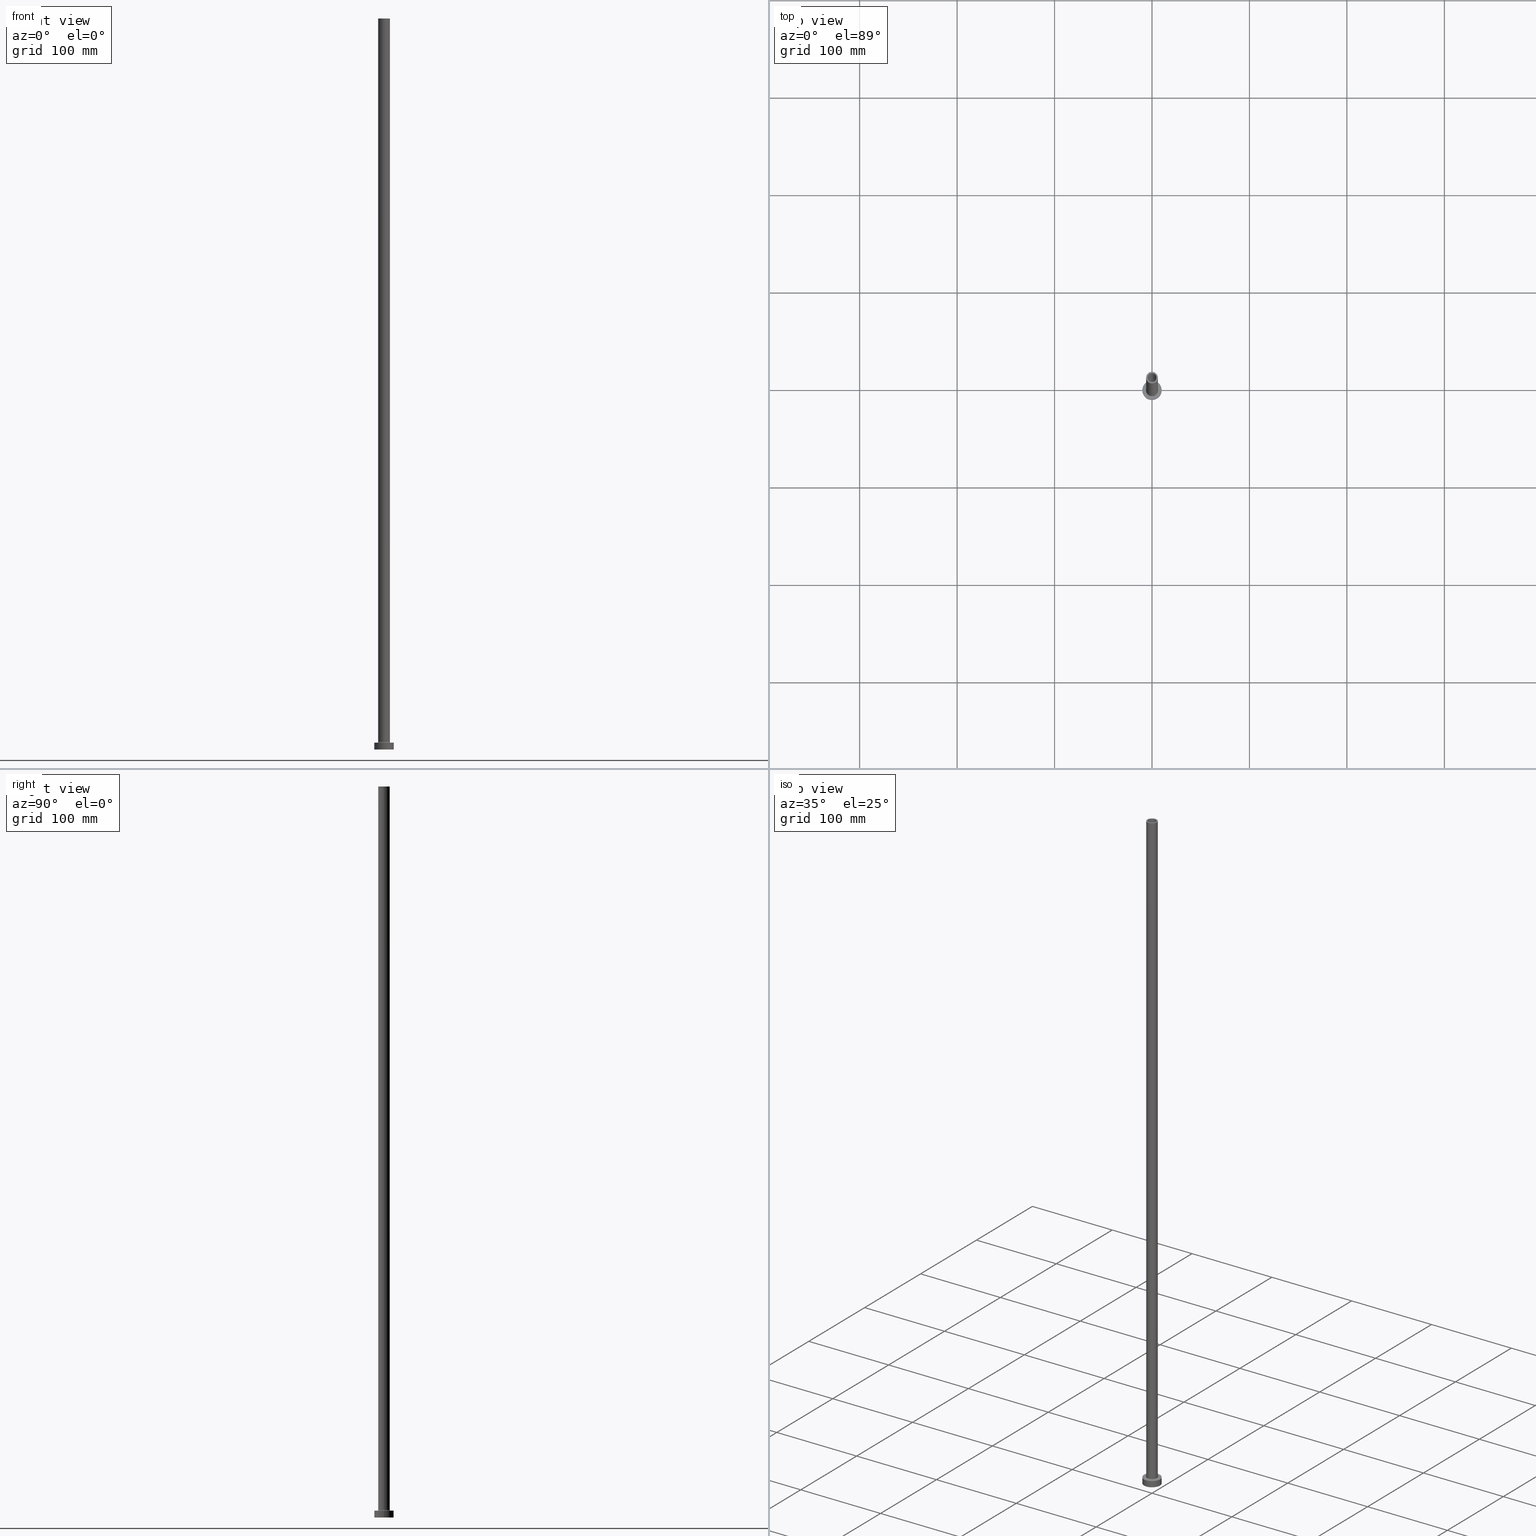
[diagram: canonical four-view strip — front | top / right | iso, engineering-drawing reading convention]
A machine part, canonical four-view strip (front | top / right | iso — engineering-drawing reading convention). The complete STEP part file that produces these views, byte-faithful:
ISO-10303-21;
HEADER;
FILE_DESCRIPTION (( 'STEP AP203' ),
    '1' );
FILE_NAME ('38ea.STEP',
    '2023-02-13T10:59:31',
    ( '' ),
    ( '' ),
    'SwSTEP 2.0',
    'SolidWorks 2019',
    '' );
FILE_SCHEMA (( 'CONFIG_CONTROL_DESIGN' ));
ENDSEC;

DATA;
#1 = CARTESIAN_POINT ( 'NONE',  ( 4.650000000000000355, 5.694607616035192869E-16, 705.0000000000000000 ) ) ;
#2 = EDGE_LOOP ( 'NONE', ( #151, #365, #74, #221 ) ) ;
#3 = AXIS2_PLACEMENT_3D ( 'NONE', #374, #243, #173 ) ;
#4 = CARTESIAN_POINT ( 'NONE',  ( 6.700000000000001066, 0.000000000000000000, 7.000000000000020428 ) ) ;
#5 = APPROVAL_STATUS ( 'not_yet_approved' ) ;
#6 = AXIS2_PLACEMENT_3D ( 'NONE', #31, #391, #256 ) ;
#7 = EDGE_CURVE ( 'NONE', #382, #440, #67, .T. ) ;
#8 = EDGE_CURVE ( 'NONE', #360, #382, #17, .T. ) ;
#9 = EDGE_CURVE ( 'NONE', #225, #143, #190, .T. ) ;
#10 = ORIENTED_EDGE ( 'NONE', *, *, #417, .F. ) ;
#11 = MECHANICAL_CONTEXT ( 'NONE', #40, 'mechanical' ) ;
#12 = CARTESIAN_POINT ( 'NONE',  ( -6.000000000000000888, 0.000000000000000000, 750.0000000000000000 ) ) ;
#13 = EDGE_CURVE ( 'NONE', #115, #362, #405, .T. ) ;
#14 = APPROVAL_ROLE ( '' ) ;
#15 = DIRECTION ( 'NONE',  ( 0.000000000000000000, 0.000000000000000000, 1.000000000000000000 ) ) ;
#16 = ORIENTED_EDGE ( 'NONE', *, *, #142, .T. ) ;
#17 = CIRCLE ( 'NONE', #133, 0.7000000000000000666 ) ;
#18 = EDGE_LOOP ( 'NONE', ( #396, #318, #394, #16 ) ) ;
#19 = DIRECTION ( 'NONE',  ( -0.000000000000000000, -0.000000000000000000, -1.000000000000000000 ) ) ;
#20 = CIRCLE ( 'NONE', #152, 4.650000000000000355 ) ;
#21 = COORDINATED_UNIVERSAL_TIME_OFFSET ( 1, 0, .AHEAD. ) ;
#22 = CC_DESIGN_PERSON_AND_ORGANIZATION_ASSIGNMENT ( #207, #343, ( #230 ) ) ;
#23 = EDGE_CURVE ( 'NONE', #158, #193, #371, .T. ) ;
#24 = PERSON_AND_ORGANIZATION ( #37, #222 ) ;
#25 = DIRECTION ( 'NONE',  ( 1.000000000000000000, 0.000000000000000000, 0.000000000000000000 ) ) ;
#26 = DIRECTION ( 'NONE',  ( 0.000000000000000000, 0.000000000000000000, 1.000000000000000000 ) ) ;
#27 = EDGE_CURVE ( 'NONE', #197, #321, #76, .T. ) ;
#28 = AXIS2_PLACEMENT_3D ( 'NONE', #309, #92, #312 ) ;
#29 = CIRCLE ( 'NONE', #331, 6.700000000000001066 ) ;
#30 = DIRECTION ( 'NONE',  ( 1.000000000000000000, 0.000000000000000000, 0.000000000000000000 ) ) ;
#31 = CARTESIAN_POINT ( 'NONE',  ( 0.000000000000000000, 0.000000000000000000, 750.0000000000000000 ) ) ;
#32 = ORIENTED_EDGE ( 'NONE', *, *, #442, .T. ) ;
#33 = CLOSED_SHELL ( 'NONE', ( #325, #422, #177, #398, #450, #181, #215, #229, #171, #313, #43, #289, #90, #264 ) ) ;
#34 = CARTESIAN_POINT ( 'NONE',  ( -4.650000000000000355, 0.000000000000000000, 0.000000000000000000 ) ) ;
#35 = ORIENTED_EDGE ( 'NONE', *, *, #98, .F. ) ;
#36 = DIRECTION ( 'NONE',  ( 0.000000000000000000, 0.000000000000000000, -1.000000000000000000 ) ) ;
#37 = PERSON ( 'NEUR�EN�', 'NEUR�EN�', 'NEUR�EN�', ('NEUR�EN�'), ('NEUR�EN�'), ('NEUR�EN�') ) ;
#38 = CARTESIAN_POINT ( 'NONE',  ( 6.000000000000000888, 7.347880794884119736E-16, 750.0000000000000000 ) ) ;
#39 = VERTEX_POINT ( 'NONE', #121 ) ;
#40 = APPLICATION_CONTEXT ( 'configuration controlled 3d designs of mechanical parts and assemblies' ) ;
#41 = CARTESIAN_POINT ( 'NONE',  ( -6.700000000000001066, 8.205133554287267548E-16, 7.000000000000020428 ) ) ;
#42 = ORIENTED_EDGE ( 'NONE', *, *, #366, .F. ) ;
#43 = ADVANCED_FACE ( 'NONE', ( #296 ), #163, .F. ) ;
#44 = APPLICATION_CONTEXT ( 'configuration controlled 3d designs of mechanical parts and assemblies' ) ;
#45 = PERSON_AND_ORGANIZATION ( #37, #222 ) ;
#46 = AXIS2_PLACEMENT_3D ( 'NONE', #61, #59, #166 ) ;
#47 = ORIENTED_EDGE ( 'NONE', *, *, #404, .F. ) ;
#48 = AXIS2_PLACEMENT_3D ( 'NONE', #178, #457, #141 ) ;
#49 = DIRECTION ( 'NONE',  ( -0.000000000000000000, -0.000000000000000000, -1.000000000000000000 ) ) ;
#50 = EDGE_CURVE ( 'NONE', #360, #143, #210, .T. ) ;
#51 = ORIENTED_EDGE ( 'NONE', *, *, #254, .T. ) ;
#52 = APPLICATION_PROTOCOL_DEFINITION ( 'international standard', 'config_control_design', 1994, #40 ) ;
#53 = DIRECTION ( 'NONE',  ( 0.000000000000000000, 0.000000000000000000, 1.000000000000000000 ) ) ;
#54 = DIRECTION ( 'NONE',  ( -1.000000000000000000, 0.000000000000000000, 0.000000000000000000 ) ) ;
#55 = EDGE_LOOP ( 'NONE', ( #217, #429 ) ) ;
#56 = DIRECTION ( 'NONE',  ( 1.000000000000000000, 0.000000000000000000, 0.000000000000000000 ) ) ;
#57 = DATE_AND_TIME ( #242, #438 ) ;
#58 = PLANE ( 'NONE',  #236 ) ;
#59 = DIRECTION ( 'NONE',  ( 0.000000000000000000, 0.000000000000000000, 1.000000000000000000 ) ) ;
#60 = LINE ( 'NONE', #413, #63 ) ;
#61 = CARTESIAN_POINT ( 'NONE',  ( 0.000000000000000000, 0.000000000000000000, 750.0000000000000000 ) ) ;
#62 = EDGE_CURVE ( 'NONE', #158, #259, #200, .T. ) ;
#63 = VECTOR ( 'NONE', #212, 1000.000000000000000 ) ;
#64 = CYLINDRICAL_SURFACE ( 'NONE', #406, 6.000000000000000888 ) ;
#65 = DIRECTION ( 'NONE',  ( 0.000000000000000000, 0.000000000000000000, 1.000000000000000000 ) ) ;
#66 = DIRECTION ( 'NONE',  ( -1.000000000000000000, 0.000000000000000000, 0.000000000000000000 ) ) ;
#67 = CIRCLE ( 'NONE', #298, 6.700000000000001066 ) ;
#68 = AXIS2_PLACEMENT_3D ( 'NONE', #306, #350, #276 ) ;
#69 = CARTESIAN_POINT ( 'NONE',  ( 0.000000000000000000, 0.000000000000000000, 7.000000000000000000 ) ) ;
#70 = ORIENTED_EDGE ( 'NONE', *, *, #308, .T. ) ;
#71 = APPROVAL_PERSON_ORGANIZATION ( #233, #433, #14 ) ;
#72 = CARTESIAN_POINT ( 'NONE',  ( 0.000000000000000000, 0.000000000000000000, 705.0000000000000000 ) ) ;
#73 = DIRECTION ( 'NONE',  ( 0.000000000000000000, 0.000000000000000000, -1.000000000000000000 ) ) ;
#74 = ORIENTED_EDGE ( 'NONE', *, *, #50, .T. ) ;
#75 = APPROVAL_DATE_TIME ( #116, #433 ) ;
#76 = LINE ( 'NONE', #340, #393 ) ;
#77 = DIRECTION ( 'NONE',  ( 0.000000000000000000, 0.000000000000000000, 1.000000000000000000 ) ) ;
#78 = EDGE_LOOP ( 'NONE', ( #392, #335 ) ) ;
#79 = CC_DESIGN_APPROVAL ( #441, ( #230 ) ) ;
#80 = CARTESIAN_POINT ( 'NONE',  ( 0.000000000000000000, 0.000000000000000000, 718.1521861300698220 ) ) ;
#81 = DIRECTION ( 'NONE',  ( 1.000000000000000000, 0.000000000000000000, 0.000000000000000000 ) ) ;
#82 = DIRECTION ( 'NONE',  ( 1.000000000000000000, 0.000000000000000000, 0.000000000000000000 ) ) ;
#83 = ORIENTED_EDGE ( 'NONE', *, *, #9, .T. ) ;
#84 = CARTESIAN_POINT ( 'NONE',  ( 0.000000000000000000, 0.000000000000000000, 7.000000000000000000 ) ) ;
#85 = DIRECTION ( 'NONE',  ( 0.000000000000000000, 0.000000000000000000, -1.000000000000000000 ) ) ;
#86 = AXIS2_PLACEMENT_3D ( 'NONE', #285, #110, #416 ) ;
#87 = CALENDAR_DATE ( 2023, 13, 2 ) ;
#88 = CARTESIAN_POINT ( 'NONE',  ( 10.00000000000000000, 1.224646799147353256E-15, 7.000000000000000000 ) ) ;
#89 = FACE_OUTER_BOUND ( 'NONE', #418, .T. ) ;
#90 = ADVANCED_FACE ( 'NONE', ( #208, #136 ), #131, .F. ) ;
#91 = PERSON_AND_ORGANIZATION ( #37, #222 ) ;
#92 = DIRECTION ( 'NONE',  ( 0.000000000000000000, 0.000000000000000000, 1.000000000000000000 ) ) ;
#93 = CIRCLE ( 'NONE', #46, 6.000000000000000888 ) ;
#94 = CC_DESIGN_APPROVAL ( #433, ( #128 ) ) ;
#95 = CC_DESIGN_PERSON_AND_ORGANIZATION_ASSIGNMENT ( #24, #377, ( #345 ) ) ;
#96 = CARTESIAN_POINT ( 'NONE',  ( -4.500000000000000000, 0.000000000000000000, 705.0000000000000000 ) ) ;
#97 = DIRECTION ( 'NONE',  ( -0.000000000000000000, -0.000000000000000000, -1.000000000000000000 ) ) ;
#98 = EDGE_CURVE ( 'NONE', #262, #369, #60, .T. ) ;
#99 = UNCERTAINTY_MEASURE_WITH_UNIT (LENGTH_MEASURE( 1.000000000000000082E-05 ), #295, 'distance_accuracy_value', 'NONE');
#100 = CARTESIAN_POINT ( 'NONE',  ( 4.650000000000000355, 5.694607616035192869E-16, 0.000000000000000000 ) ) ;
#101 = EDGE_LOOP ( 'NONE', ( #257, #339 ) ) ;
#102 = AXIS2_PLACEMENT_3D ( 'NONE', #183, #323, #224 ) ;
#103 = CARTESIAN_POINT ( 'NONE',  ( 0.000000000000000000, 0.000000000000000000, 750.0000000000000000 ) ) ;
#104 = ORIENTED_EDGE ( 'NONE', *, *, #320, .T. ) ;
#105 = CC_DESIGN_DATE_AND_TIME_ASSIGNMENT ( #297, #432, ( #128 ) ) ;
#106 = EDGE_CURVE ( 'NONE', #327, #360, #277, .T. ) ;
#107 = LINE ( 'NONE', #456, #244 ) ;
#108 = ORIENTED_EDGE ( 'NONE', *, *, #455, .F. ) ;
#109 = VECTOR ( 'NONE', #443, 1000.000000000000000 ) ;
#110 = DIRECTION ( 'NONE',  ( 1.224646799147353207E-16, 1.000000000000000000, -0.000000000000000000 ) ) ;
#111 = ORIENTED_EDGE ( 'NONE', *, *, #23, .T. ) ;
#112 = AXIS2_PLACEMENT_3D ( 'NONE', #269, #159, #338 ) ;
#113 = CYLINDRICAL_SURFACE ( 'NONE', #213, 4.650000000000000355 ) ;
#114 = ADVANCED_BREP_SHAPE_REPRESENTATION ( '38ea', ( #202, #175 ), #252 ) ;
#115 = VERTEX_POINT ( 'NONE', #248 ) ;
#116 = DATE_AND_TIME ( #431, #237 ) ;
#117 = CARTESIAN_POINT ( 'NONE',  ( 0.000000000000000000, 0.000000000000000000, 7.700000000000040146 ) ) ;
#118 = PERSON_AND_ORGANIZATION_ROLE ( 'creator' ) ;
#119 = EDGE_LOOP ( 'NONE', ( #186, #461 ) ) ;
#120 = PERSON_AND_ORGANIZATION_ROLE ( 'design_owner' ) ;
#121 = CARTESIAN_POINT ( 'NONE',  ( 4.500000000000000000, 5.510910596163088569E-16, 705.0000000000000000 ) ) ;
#122 = AXIS2_PLACEMENT_3D ( 'NONE', #69, #65, #389 ) ;
#123 = CC_DESIGN_PERSON_AND_ORGANIZATION_ASSIGNMENT ( #329, #120, ( #191 ) ) ;
#124 = CYLINDRICAL_SURFACE ( 'NONE', #294, 4.650000000000000355 ) ;
#125 = DIRECTION ( 'NONE',  ( -0.000000000000000000, -0.000000000000000000, -1.000000000000000000 ) ) ;
#126 = DIRECTION ( 'NONE',  ( 1.000000000000000000, 0.000000000000000000, 0.000000000000000000 ) ) ;
#127 = ORIENTED_EDGE ( 'NONE', *, *, #23, .F. ) ;
#128 = PRODUCT_DEFINITION ( 'NEZN�M�', '', #345, #415 ) ;
#129 = CARTESIAN_POINT ( 'NONE',  ( 0.000000000000000000, 0.000000000000000000, 750.0000000000000000 ) ) ;
#130 = CIRCLE ( 'NONE', #122, 10.00000000000000000 ) ;
#131 = PLANE ( 'NONE',  #68 ) ;
#132 = DATE_TIME_ROLE ( 'classification_date' ) ;
#133 = AXIS2_PLACEMENT_3D ( 'NONE', #305, #266, #234 ) ;
#134 = CARTESIAN_POINT ( 'NONE',  ( -4.500000000000000000, 0.000000000000000000, 750.0000000000000000 ) ) ;
#135 = CC_DESIGN_PERSON_AND_ORGANIZATION_ASSIGNMENT ( #45, #118, ( #128 ) ) ;
#136 = FACE_OUTER_BOUND ( 'NONE', #184, .T. ) ;
#137 = CIRCLE ( 'NONE', #430, 10.00000000000000000 ) ;
#138 = FACE_OUTER_BOUND ( 'NONE', #352, .T. ) ;
#139 = VECTOR ( 'NONE', #270, 1000.000000000000000 ) ;
#140 = DIRECTION ( 'NONE',  ( -1.000000000000000000, 0.000000000000000000, 0.000000000000000000 ) ) ;
#141 = DIRECTION ( 'NONE',  ( 1.000000000000000000, 0.000000000000000000, 0.000000000000000000 ) ) ;
#142 = EDGE_CURVE ( 'NONE', #321, #238, #386, .T. ) ;
#143 = VERTEX_POINT ( 'NONE', #410 ) ;
#144 = CIRCLE ( 'NONE', #307, 4.650000000000000355 ) ;
#145 = CC_DESIGN_SECURITY_CLASSIFICATION ( #230, ( #345 ) ) ;
#146 = FACE_OUTER_BOUND ( 'NONE', #2, .T. ) ;
#147 = ORIENTED_EDGE ( 'NONE', *, *, #267, .F. ) ;
#148 = CARTESIAN_POINT ( 'NONE',  ( 0.000000000000000000, 0.000000000000000000, 7.700000000000040146 ) ) ;
#149 = ORIENTED_EDGE ( 'NONE', *, *, #349, .T. ) ;
#150 = FACE_OUTER_BOUND ( 'NONE', #426, .T. ) ;
#151 = ORIENTED_EDGE ( 'NONE', *, *, #341, .F. ) ;
#152 = AXIS2_PLACEMENT_3D ( 'NONE', #231, #77, #82 ) ;
#153 = COORDINATED_UNIVERSAL_TIME_OFFSET ( 1, 0, .AHEAD. ) ;
#154 = ORIENTED_EDGE ( 'NONE', *, *, #353, .F. ) ;
#155 = CALENDAR_DATE ( 2023, 13, 2 ) ;
#156 = ORIENTED_EDGE ( 'NONE', *, *, #8, .T. ) ;
#157 = APPLICATION_PROTOCOL_DEFINITION ( 'international standard', 'config_control_design', 1994, #44 ) ;
#158 = VERTEX_POINT ( 'NONE', #134 ) ;
#159 = DIRECTION ( 'NONE',  ( 0.000000000000000000, 0.000000000000000000, 1.000000000000000000 ) ) ;
#160 = LOCAL_TIME ( 11, 59, 31.00000000000000000, #375 ) ;
#161 = ORIENTED_EDGE ( 'NONE', *, *, #7, .F. ) ;
#162 = ORIENTED_EDGE ( 'NONE', *, *, #8, .F. ) ;
#163 = TOROIDAL_SURFACE ( 'NONE', #402, 6.700000000000001066, 0.6999999999999999556 ) ;
#164 = PERSON_AND_ORGANIZATION ( #37, #222 ) ;
#165 = FACE_OUTER_BOUND ( 'NONE', #263, .T. ) ;
#166 = DIRECTION ( 'NONE',  ( 1.000000000000000000, 0.000000000000000000, 0.000000000000000000 ) ) ;
#167 = CIRCLE ( 'NONE', #419, 4.500000000000000000 ) ;
#168 = CIRCLE ( 'NONE', #214, 4.650000000000000355 ) ;
#169 = DATE_AND_TIME ( #87, #370 ) ;
#170 = CARTESIAN_POINT ( 'NONE',  ( 6.000000000000000888, 7.347880794884119736E-16, 750.0000000000000000 ) ) ;
#171 = ADVANCED_FACE ( 'NONE', ( #89 ), #64, .T. ) ;
#172 = CARTESIAN_POINT ( 'NONE',  ( -10.00000000000000000, 0.000000000000000000, 7.000000000000000000 ) ) ;
#173 = DIRECTION ( 'NONE',  ( 1.000000000000000000, 0.000000000000000000, 0.000000000000000000 ) ) ;
#174 = TOROIDAL_SURFACE ( 'NONE', #437, 6.700000000000001066, 0.6999999999999999556 ) ;
#175 = AXIS2_PLACEMENT_3D ( 'NONE', #334, #273, #439 ) ;
#176 = CARTESIAN_POINT ( 'NONE',  ( 0.000000000000000000, 0.000000000000000000, 705.0000000000000000 ) ) ;
#177 = ADVANCED_FACE ( 'NONE', ( #165 ), #174, .F. ) ;
#178 = CARTESIAN_POINT ( 'NONE',  ( 0.000000000000000000, 0.000000000000000000, 0.000000000000000000 ) ) ;
#179 = ORIENTED_EDGE ( 'NONE', *, *, #50, .F. ) ;
#180 = CYLINDRICAL_SURFACE ( 'NONE', #397, 4.500000000000000000 ) ;
#181 = ADVANCED_FACE ( 'NONE', ( #379 ), #240, .T. ) ;
#182 = VERTEX_POINT ( 'NONE', #88 ) ;
#183 = CARTESIAN_POINT ( 'NONE',  ( 0.000000000000000000, 0.000000000000000000, 750.0000000000000000 ) ) ;
#184 = EDGE_LOOP ( 'NONE', ( #154, #10 ) ) ;
#185 = LINE ( 'NONE', #326, #322 ) ;
#186 = ORIENTED_EDGE ( 'NONE', *, *, #383, .F. ) ;
#187 = CIRCLE ( 'NONE', #446, 4.500000000000000000 ) ;
#188 = CIRCLE ( 'NONE', #48, 4.650000000000000355 ) ;
#189 =( NAMED_UNIT ( * ) SI_UNIT ( $, .STERADIAN. ) SOLID_ANGLE_UNIT ( ) );
#190 = LINE ( 'NONE', #12, #109 ) ;
#191 = PRODUCT ( '38ea', '38ea', '', ( #11 ) ) ;
#192 = EDGE_CURVE ( 'NONE', #225, #327, #93, .T. ) ;
#193 = VERTEX_POINT ( 'NONE', #96 ) ;
#194 = CYLINDRICAL_SURFACE ( 'NONE', #279, 10.00000000000000000 ) ;
#195 = EDGE_LOOP ( 'NONE', ( #42, #293, #111, #147 ) ) ;
#196 = DIRECTION ( 'NONE',  ( -1.000000000000000000, 0.000000000000000000, 0.000000000000000000 ) ) ;
#197 = VERTEX_POINT ( 'NONE', #172 ) ;
#198 = APPROVAL ( #395, 'NEUR�EN�' ) ;
#199 = EDGE_LOOP ( 'NONE', ( #232, #458 ) ) ;
#200 = CIRCLE ( 'NONE', #3, 4.500000000000000000 ) ;
#201 = DATE_AND_TIME ( #453, #160 ) ;
#202 = MANIFOLD_SOLID_BREP ( 'Odebrat vysunut�m4', #33 ) ;
#203 = CARTESIAN_POINT ( 'NONE',  ( -6.000000000000000888, 0.000000000000000000, 750.0000000000000000 ) ) ;
#204 = SHAPE_DEFINITION_REPRESENTATION ( #226, #114 ) ;
#205 = PLANE ( 'NONE',  #357 ) ;
#206 = CIRCLE ( 'NONE', #447, 6.000000000000000888 ) ;
#207 = PERSON_AND_ORGANIZATION ( #37, #222 ) ;
#208 = FACE_BOUND ( 'NONE', #55, .T. ) ;
#209 = APPROVAL_DATE_TIME ( #169, #441 ) ;
#210 = CIRCLE ( 'NONE', #283, 6.000000000000000888 ) ;
#211 = FACE_BOUND ( 'NONE', #119, .T. ) ;
#212 = DIRECTION ( 'NONE',  ( 0.000000000000000000, 0.000000000000000000, -1.000000000000000000 ) ) ;
#213 = AXIS2_PLACEMENT_3D ( 'NONE', #380, #36, #317 ) ;
#214 = AXIS2_PLACEMENT_3D ( 'NONE', #72, #427, #319 ) ;
#215 = ADVANCED_FACE ( 'NONE', ( #448, #138 ), #58, .T. ) ;
#216 = DIRECTION ( 'NONE',  ( -0.000000000000000000, -0.000000000000000000, -1.000000000000000000 ) ) ;
#217 = ORIENTED_EDGE ( 'NONE', *, *, #455, .T. ) ;
#218 = DIRECTION ( 'NONE',  ( 1.000000000000000000, 0.000000000000000000, 0.000000000000000000 ) ) ;
#219 = ORIENTED_EDGE ( 'NONE', *, *, #62, .T. ) ;
#220 = DIRECTION ( 'NONE',  ( 1.000000000000000000, 0.000000000000000000, 0.000000000000000000 ) ) ;
#221 = ORIENTED_EDGE ( 'NONE', *, *, #9, .F. ) ;
#222 = ORGANIZATION ( 'NEUR�EN�', 'NEUR�EN�', '' ) ;
#223 = FACE_OUTER_BOUND ( 'NONE', #195, .T. ) ;
#224 = DIRECTION ( 'NONE',  ( 1.000000000000000000, 0.000000000000000000, -0.000000000000000000 ) ) ;
#225 = VERTEX_POINT ( 'NONE', #203 ) ;
#226 = PRODUCT_DEFINITION_SHAPE ( 'NONE', 'NONE',  #128 ) ;
#227 = DIRECTION ( 'NONE',  ( 0.000000000000000000, 0.000000000000000000, -1.000000000000000000 ) ) ;
#228 = CARTESIAN_POINT ( 'NONE',  ( -4.650000000000000355, 0.000000000000000000, 718.1521861300698220 ) ) ;
#229 = ADVANCED_FACE ( 'NONE', ( #211, #241 ), #205, .F. ) ;
#230 = SECURITY_CLASSIFICATION ( '', '', #245 ) ;
#231 = CARTESIAN_POINT ( 'NONE',  ( 0.000000000000000000, 0.000000000000000000, 705.0000000000000000 ) ) ;
#232 = ORIENTED_EDGE ( 'NONE', *, *, #7, .T. ) ;
#233 = PERSON_AND_ORGANIZATION ( #37, #222 ) ;
#234 = DIRECTION ( 'NONE',  ( 0.000000000000000000, 0.000000000000000000, -1.000000000000000000 ) ) ;
#235 = ORIENTED_EDGE ( 'NONE', *, *, #249, .T. ) ;
#236 = AXIS2_PLACEMENT_3D ( 'NONE', #281, #278, #454 ) ;
#237 = LOCAL_TIME ( 11, 59, 31.00000000000000000, #153 ) ;
#238 = VERTEX_POINT ( 'NONE', #344 ) ;
#239 = APPROVAL_ROLE ( '' ) ;
#240 = CYLINDRICAL_SURFACE ( 'NONE', #260, 10.00000000000000000 ) ;
#241 = FACE_OUTER_BOUND ( 'NONE', #324, .T. ) ;
#242 = CALENDAR_DATE ( 2023, 13, 2 ) ;
#243 = DIRECTION ( 'NONE',  ( 0.000000000000000000, 0.000000000000000000, 1.000000000000000000 ) ) ;
#244 = VECTOR ( 'NONE', #216, 1000.000000000000000 ) ;
#245 = SECURITY_CLASSIFICATION_LEVEL ( 'unclassified' ) ;
#246 = CARTESIAN_POINT ( 'NONE',  ( 0.000000000000000000, 0.000000000000000000, 7.700000000000040146 ) ) ;
#247 = PRODUCT_RELATED_PRODUCT_CATEGORY ( 'detail', '', ( #191 ) ) ;
#248 = CARTESIAN_POINT ( 'NONE',  ( -4.650000000000000355, 0.000000000000000000, 705.0000000000000000 ) ) ;
#249 = EDGE_CURVE ( 'NONE', #369, #362, #144, .T. ) ;
#250 = DIRECTION ( 'NONE',  ( 1.000000000000000000, 0.000000000000000000, 0.000000000000000000 ) ) ;
#251 = ORIENTED_EDGE ( 'NONE', *, *, #349, .F. ) ;
#252 =( GEOMETRIC_REPRESENTATION_CONTEXT ( 3 ) GLOBAL_UNCERTAINTY_ASSIGNED_CONTEXT ( ( #99 ) ) GLOBAL_UNIT_ASSIGNED_CONTEXT ( ( #295, #399, #189 ) ) REPRESENTATION_CONTEXT ( 'NONE', 'WORKASPACE' ) );
#253 = DIRECTION ( 'NONE',  ( -0.000000000000000000, -0.000000000000000000, -1.000000000000000000 ) ) ;
#254 = EDGE_CURVE ( 'NONE', #197, #182, #428, .T. ) ;
#255 = ORIENTED_EDGE ( 'NONE', *, *, #308, .F. ) ;
#256 = DIRECTION ( 'NONE',  ( -1.000000000000000000, 0.000000000000000000, 0.000000000000000000 ) ) ;
#257 = ORIENTED_EDGE ( 'NONE', *, *, #192, .T. ) ;
#258 = DIRECTION ( 'NONE',  ( 0.000000000000000000, 0.000000000000000000, 1.000000000000000000 ) ) ;
#259 = VERTEX_POINT ( 'NONE', #452 ) ;
#260 = AXIS2_PLACEMENT_3D ( 'NONE', #275, #310, #408 ) ;
#261 = CYLINDRICAL_SURFACE ( 'NONE', #6, 4.500000000000000000 ) ;
#262 = VERTEX_POINT ( 'NONE', #1 ) ;
#263 = EDGE_LOOP ( 'NONE', ( #330, #149, #161, #162 ) ) ;
#264 = ADVANCED_FACE ( 'NONE', ( #223 ), #261, .F. ) ;
#265 = PERSON_AND_ORGANIZATION ( #37, #222 ) ;
#266 = DIRECTION ( 'NONE',  ( 0.000000000000000000, -1.000000000000000000, 0.000000000000000000 ) ) ;
#267 = EDGE_CURVE ( 'NONE', #39, #193, #187, .T. ) ;
#268 = APPROVAL_PERSON_ORGANIZATION ( #91, #441, #409 ) ;
#269 = CARTESIAN_POINT ( 'NONE',  ( 0.000000000000000000, 0.000000000000000000, 705.0000000000000000 ) ) ;
#270 = DIRECTION ( 'NONE',  ( 0.000000000000000000, 0.000000000000000000, -1.000000000000000000 ) ) ;
#271 = CARTESIAN_POINT ( 'NONE',  ( 0.000000000000000000, 0.000000000000000000, 0.000000000000000000 ) ) ;
#272 = ORIENTED_EDGE ( 'NONE', *, *, #142, .F. ) ;
#273 = DIRECTION ( 'NONE',  ( 0.000000000000000000, 0.000000000000000000, 1.000000000000000000 ) ) ;
#274 = EDGE_LOOP ( 'NONE', ( #219, #286, #108, #127 ) ) ;
#275 = CARTESIAN_POINT ( 'NONE',  ( 0.000000000000000000, 0.000000000000000000, 7.000000000000000000 ) ) ;
#276 = DIRECTION ( 'NONE',  ( 1.000000000000000000, 0.000000000000000000, -0.000000000000000000 ) ) ;
#277 = LINE ( 'NONE', #170, #336 ) ;
#278 = DIRECTION ( 'NONE',  ( 0.000000000000000000, 0.000000000000000000, 1.000000000000000000 ) ) ;
#279 = AXIS2_PLACEMENT_3D ( 'NONE', #84, #49, #196 ) ;
#280 = COORDINATED_UNIVERSAL_TIME_OFFSET ( 1, 0, .AHEAD. ) ;
#281 = CARTESIAN_POINT ( 'NONE',  ( 0.000000000000000000, 0.000000000000000000, 7.000000000000000000 ) ) ;
#282 = VECTOR ( 'NONE', #85, 1000.000000000000000 ) ;
#283 = AXIS2_PLACEMENT_3D ( 'NONE', #434, #53, #337 ) ;
#284 = DIRECTION ( 'NONE',  ( 0.000000000000000000, 0.000000000000000000, 1.000000000000000000 ) ) ;
#285 = CARTESIAN_POINT ( 'NONE',  ( -6.700000000000001066, 8.205133554287267548E-16, 7.700000000000040146 ) ) ;
#286 = ORIENTED_EDGE ( 'NONE', *, *, #366, .T. ) ;
#287 = CARTESIAN_POINT ( 'NONE',  ( 0.000000000000000000, 0.000000000000000000, 7.000000000000000000 ) ) ;
#288 = ORIENTED_EDGE ( 'NONE', *, *, #353, .T. ) ;
#289 = ADVANCED_FACE ( 'NONE', ( #150 ), #113, .F. ) ;
#290 = PLANE ( 'NONE',  #102 ) ;
#291 = ORIENTED_EDGE ( 'NONE', *, *, #192, .F. ) ;
#292 = FACE_OUTER_BOUND ( 'NONE', #101, .T. ) ;
#293 = ORIENTED_EDGE ( 'NONE', *, *, #302, .T. ) ;
#294 = AXIS2_PLACEMENT_3D ( 'NONE', #80, #227, #54 ) ;
#295 =( LENGTH_UNIT ( ) NAMED_UNIT ( * ) SI_UNIT ( .MILLI., .METRE. ) );
#296 = FACE_OUTER_BOUND ( 'NONE', #367, .T. ) ;
#297 = DATE_AND_TIME ( #155, #407 ) ;
#298 = AXIS2_PLACEMENT_3D ( 'NONE', #299, #125, #56 ) ;
#299 = CARTESIAN_POINT ( 'NONE',  ( 0.000000000000000000, 0.000000000000000000, 7.000000000000000000 ) ) ;
#300 = FACE_OUTER_BOUND ( 'NONE', #304, .T. ) ;
#301 = ORIENTED_EDGE ( 'NONE', *, *, #27, .F. ) ;
#302 = EDGE_CURVE ( 'NONE', #259, #158, #167, .T. ) ;
#303 = CIRCLE ( 'NONE', #86, 0.7000000000000000666 ) ;
#304 = EDGE_LOOP ( 'NONE', ( #288, #401, #235, #355 ) ) ;
#305 = CARTESIAN_POINT ( 'NONE',  ( 6.700000000000001066, 0.000000000000000000, 7.700000000000040146 ) ) ;
#306 = CARTESIAN_POINT ( 'NONE',  ( 0.000000000000000000, 0.000000000000000000, 705.0000000000000000 ) ) ;
#307 = AXIS2_PLACEMENT_3D ( 'NONE', #411, #19, #25 ) ;
#308 = EDGE_CURVE ( 'NONE', #182, #197, #130, .T. ) ;
#309 = CARTESIAN_POINT ( 'NONE',  ( 0.000000000000000000, 0.000000000000000000, 7.000000000000000000 ) ) ;
#310 = DIRECTION ( 'NONE',  ( -0.000000000000000000, -0.000000000000000000, -1.000000000000000000 ) ) ;
#311 = AXIS2_PLACEMENT_3D ( 'NONE', #348, #346, #414 ) ;
#312 = DIRECTION ( 'NONE',  ( 1.000000000000000000, 0.000000000000000000, 0.000000000000000000 ) ) ;
#313 = ADVANCED_FACE ( 'NONE', ( #425, #292 ), #290, .T. ) ;
#314 = CARTESIAN_POINT ( 'NONE',  ( 0.000000000000000000, 0.000000000000000000, 0.000000000000000000 ) ) ;
#315 = AXIS2_PLACEMENT_3D ( 'NONE', #148, #316, #218 ) ;
#316 = DIRECTION ( 'NONE',  ( 0.000000000000000000, 0.000000000000000000, 1.000000000000000000 ) ) ;
#317 = DIRECTION ( 'NONE',  ( -1.000000000000000000, 0.000000000000000000, 0.000000000000000000 ) ) ;
#318 = ORIENTED_EDGE ( 'NONE', *, *, #254, .F. ) ;
#319 = DIRECTION ( 'NONE',  ( 1.000000000000000000, 0.000000000000000000, 0.000000000000000000 ) ) ;
#320 = EDGE_CURVE ( 'NONE', #182, #238, #107, .T. ) ;
#321 = VERTEX_POINT ( 'NONE', #459 ) ;
#322 = VECTOR ( 'NONE', #384, 1000.000000000000000 ) ;
#323 = DIRECTION ( 'NONE',  ( 0.000000000000000000, 0.000000000000000000, 1.000000000000000000 ) ) ;
#324 = EDGE_LOOP ( 'NONE', ( #272, #390 ) ) ;
#325 = ADVANCED_FACE ( 'NONE', ( #359 ), #180, .F. ) ;
#326 = CARTESIAN_POINT ( 'NONE',  ( 4.500000000000000000, 5.510910596163088569E-16, 750.0000000000000000 ) ) ;
#327 = VERTEX_POINT ( 'NONE', #38 ) ;
#328 = CC_DESIGN_PERSON_AND_ORGANIZATION_ASSIGNMENT ( #164, #451, ( #345 ) ) ;
#329 = PERSON_AND_ORGANIZATION ( #37, #222 ) ;
#330 = ORIENTED_EDGE ( 'NONE', *, *, #342, .F. ) ;
#331 = AXIS2_PLACEMENT_3D ( 'NONE', #287, #403, #126 ) ;
#332 = COORDINATED_UNIVERSAL_TIME_OFFSET ( 1, 0, .AHEAD. ) ;
#333 = DIRECTION ( 'NONE',  ( -0.000000000000000000, -0.000000000000000000, -1.000000000000000000 ) ) ;
#334 = CARTESIAN_POINT ( 'NONE',  ( 0.000000000000000000, 0.000000000000000000, 0.000000000000000000 ) ) ;
#335 = ORIENTED_EDGE ( 'NONE', *, *, #302, .F. ) ;
#336 = VECTOR ( 'NONE', #373, 1000.000000000000000 ) ;
#337 = DIRECTION ( 'NONE',  ( 1.000000000000000000, 0.000000000000000000, 0.000000000000000000 ) ) ;
#338 = DIRECTION ( 'NONE',  ( 1.000000000000000000, 0.000000000000000000, 0.000000000000000000 ) ) ;
#339 = ORIENTED_EDGE ( 'NONE', *, *, #341, .T. ) ;
#340 = CARTESIAN_POINT ( 'NONE',  ( -10.00000000000000000, 0.000000000000000000, 7.000000000000000000 ) ) ;
#341 = EDGE_CURVE ( 'NONE', #327, #225, #206, .T. ) ;
#342 = EDGE_CURVE ( 'NONE', #143, #360, #363, .T. ) ;
#343 = PERSON_AND_ORGANIZATION_ROLE ( 'classification_officer' ) ;
#344 = CARTESIAN_POINT ( 'NONE',  ( 10.00000000000000000, 1.224646799147353256E-15, 0.000000000000000000 ) ) ;
#345 = PRODUCT_DEFINITION_FORMATION_WITH_SPECIFIED_SOURCE ( 'LIBOVOLN�', '', #191, .NOT_KNOWN. ) ;
#346 = DIRECTION ( 'NONE',  ( 0.000000000000000000, 0.000000000000000000, 1.000000000000000000 ) ) ;
#347 = CC_DESIGN_DATE_AND_TIME_ASSIGNMENT ( #57, #132, ( #230 ) ) ;
#348 = CARTESIAN_POINT ( 'NONE',  ( 0.000000000000000000, 0.000000000000000000, 0.000000000000000000 ) ) ;
#349 = EDGE_CURVE ( 'NONE', #143, #440, #303, .T. ) ;
#350 = DIRECTION ( 'NONE',  ( 0.000000000000000000, 0.000000000000000000, 1.000000000000000000 ) ) ;
#351 = CARTESIAN_POINT ( 'NONE',  ( 0.000000000000000000, 0.000000000000000000, 750.0000000000000000 ) ) ;
#352 = EDGE_LOOP ( 'NONE', ( #51, #70 ) ) ;
#353 = EDGE_CURVE ( 'NONE', #115, #262, #168, .T. ) ;
#354 = CARTESIAN_POINT ( 'NONE',  ( 6.000000000000000888, 7.347880794884119736E-16, 7.700000000000040146 ) ) ;
#355 = ORIENTED_EDGE ( 'NONE', *, *, #13, .F. ) ;
#356 = DIRECTION ( 'NONE',  ( 0.000000000000000000, 0.000000000000000000, 1.000000000000000000 ) ) ;
#357 = AXIS2_PLACEMENT_3D ( 'NONE', #314, #26, #376 ) ;
#358 = APPROVAL_PERSON_ORGANIZATION ( #265, #198, #239 ) ;
#359 = FACE_OUTER_BOUND ( 'NONE', #274, .T. ) ;
#360 = VERTEX_POINT ( 'NONE', #354 ) ;
#361 = ORIENTED_EDGE ( 'NONE', *, *, #417, .T. ) ;
#362 = VERTEX_POINT ( 'NONE', #34 ) ;
#363 = CIRCLE ( 'NONE', #315, 6.000000000000000888 ) ;
#364 = DIRECTION ( 'NONE',  ( 1.000000000000000000, 0.000000000000000000, 0.000000000000000000 ) ) ;
#365 = ORIENTED_EDGE ( 'NONE', *, *, #106, .T. ) ;
#366 = EDGE_CURVE ( 'NONE', #259, #39, #185, .T. ) ;
#367 = EDGE_LOOP ( 'NONE', ( #251, #179, #156, #47 ) ) ;
#368 = DIRECTION ( 'NONE',  ( 0.000000000000000000, 0.000000000000000000, 1.000000000000000000 ) ) ;
#369 = VERTEX_POINT ( 'NONE', #100 ) ;
#370 = LOCAL_TIME ( 11, 59, 31.00000000000000000, #21 ) ;
#371 = LINE ( 'NONE', #436, #139 ) ;
#372 = APPROVAL_DATE_TIME ( #201, #198 ) ;
#373 = DIRECTION ( 'NONE',  ( -0.000000000000000000, -0.000000000000000000, -1.000000000000000000 ) ) ;
#374 = CARTESIAN_POINT ( 'NONE',  ( 0.000000000000000000, 0.000000000000000000, 750.0000000000000000 ) ) ;
#375 = COORDINATED_UNIVERSAL_TIME_OFFSET ( 1, 0, .AHEAD. ) ;
#376 = DIRECTION ( 'NONE',  ( 1.000000000000000000, 0.000000000000000000, -0.000000000000000000 ) ) ;
#377 = PERSON_AND_ORGANIZATION_ROLE ( 'design_supplier' ) ;
#378 = DIRECTION ( 'NONE',  ( -1.000000000000000000, 0.000000000000000000, 0.000000000000000000 ) ) ;
#379 = FACE_OUTER_BOUND ( 'NONE', #18, .T. ) ;
#380 = CARTESIAN_POINT ( 'NONE',  ( 0.000000000000000000, 0.000000000000000000, 718.1521861300698220 ) ) ;
#381 = AXIS2_PLACEMENT_3D ( 'NONE', #103, #253, #66 ) ;
#382 = VERTEX_POINT ( 'NONE', #4 ) ;
#383 = EDGE_CURVE ( 'NONE', #362, #369, #188, .T. ) ;
#384 = DIRECTION ( 'NONE',  ( 0.000000000000000000, 0.000000000000000000, -1.000000000000000000 ) ) ;
#385 = ORIENTED_EDGE ( 'NONE', *, *, #13, .T. ) ;
#386 = CIRCLE ( 'NONE', #311, 10.00000000000000000 ) ;
#387 = CARTESIAN_POINT ( 'NONE',  ( 0.000000000000000000, 0.000000000000000000, 750.0000000000000000 ) ) ;
#388 = EDGE_LOOP ( 'NONE', ( #255, #104, #32, #301 ) ) ;
#389 = DIRECTION ( 'NONE',  ( 1.000000000000000000, 0.000000000000000000, 0.000000000000000000 ) ) ;
#390 = ORIENTED_EDGE ( 'NONE', *, *, #442, .F. ) ;
#391 = DIRECTION ( 'NONE',  ( 0.000000000000000000, 0.000000000000000000, -1.000000000000000000 ) ) ;
#392 = ORIENTED_EDGE ( 'NONE', *, *, #62, .F. ) ;
#393 = VECTOR ( 'NONE', #333, 1000.000000000000000 ) ;
#394 = ORIENTED_EDGE ( 'NONE', *, *, #27, .T. ) ;
#395 = APPROVAL_STATUS ( 'not_yet_approved' ) ;
#396 = ORIENTED_EDGE ( 'NONE', *, *, #320, .F. ) ;
#397 = AXIS2_PLACEMENT_3D ( 'NONE', #423, #73, #140 ) ;
#398 = ADVANCED_FACE ( 'NONE', ( #146 ), #420, .T. ) ;
#399 =( NAMED_UNIT ( * ) PLANE_ANGLE_UNIT ( ) SI_UNIT ( $, .RADIAN. ) );
#400 = ORIENTED_EDGE ( 'NONE', *, *, #106, .F. ) ;
#401 = ORIENTED_EDGE ( 'NONE', *, *, #98, .T. ) ;
#402 = AXIS2_PLACEMENT_3D ( 'NONE', #117, #15, #81 ) ;
#403 = DIRECTION ( 'NONE',  ( -0.000000000000000000, -0.000000000000000000, -1.000000000000000000 ) ) ;
#404 = EDGE_CURVE ( 'NONE', #440, #382, #29, .T. ) ;
#405 = LINE ( 'NONE', #228, #282 ) ;
#406 = AXIS2_PLACEMENT_3D ( 'NONE', #129, #97, #378 ) ;
#407 = LOCAL_TIME ( 11, 59, 31.00000000000000000, #332 ) ;
#408 = DIRECTION ( 'NONE',  ( -1.000000000000000000, 0.000000000000000000, 0.000000000000000000 ) ) ;
#409 = APPROVAL_ROLE ( '' ) ;
#410 = CARTESIAN_POINT ( 'NONE',  ( -6.000000000000000888, 0.000000000000000000, 7.700000000000040146 ) ) ;
#411 = CARTESIAN_POINT ( 'NONE',  ( 0.000000000000000000, 0.000000000000000000, 0.000000000000000000 ) ) ;
#412 = CC_DESIGN_APPROVAL ( #198, ( #345 ) ) ;
#413 = CARTESIAN_POINT ( 'NONE',  ( 4.650000000000000355, 5.694607616035192869E-16, 718.1521861300698220 ) ) ;
#414 = DIRECTION ( 'NONE',  ( 1.000000000000000000, 0.000000000000000000, 0.000000000000000000 ) ) ;
#415 = DESIGN_CONTEXT ( 'detailed design', #44, 'design' ) ;
#416 = DIRECTION ( 'NONE',  ( -1.000000000000000000, 1.224646799147353454E-16, 0.000000000000000000 ) ) ;
#417 = EDGE_CURVE ( 'NONE', #262, #115, #20, .T. ) ;
#418 = EDGE_LOOP ( 'NONE', ( #400, #291, #83, #421 ) ) ;
#419 = AXIS2_PLACEMENT_3D ( 'NONE', #387, #258, #220 ) ;
#420 = CYLINDRICAL_SURFACE ( 'NONE', #381, 6.000000000000000888 ) ;
#421 = ORIENTED_EDGE ( 'NONE', *, *, #342, .T. ) ;
#422 = ADVANCED_FACE ( 'NONE', ( #300 ), #124, .F. ) ;
#423 = CARTESIAN_POINT ( 'NONE',  ( 0.000000000000000000, 0.000000000000000000, 750.0000000000000000 ) ) ;
#424 = ORIENTED_EDGE ( 'NONE', *, *, #383, .T. ) ;
#425 = FACE_BOUND ( 'NONE', #78, .T. ) ;
#426 = EDGE_LOOP ( 'NONE', ( #35, #361, #385, #424 ) ) ;
#427 = DIRECTION ( 'NONE',  ( 0.000000000000000000, 0.000000000000000000, 1.000000000000000000 ) ) ;
#428 = CIRCLE ( 'NONE', #28, 10.00000000000000000 ) ;
#429 = ORIENTED_EDGE ( 'NONE', *, *, #267, .T. ) ;
#430 = AXIS2_PLACEMENT_3D ( 'NONE', #271, #368, #364 ) ;
#431 = CALENDAR_DATE ( 2023, 13, 2 ) ;
#432 = DATE_TIME_ROLE ( 'creation_date' ) ;
#433 = APPROVAL ( #5, 'NEUR�EN�' ) ;
#434 = CARTESIAN_POINT ( 'NONE',  ( 0.000000000000000000, 0.000000000000000000, 7.700000000000040146 ) ) ;
#435 = FACE_OUTER_BOUND ( 'NONE', #388, .T. ) ;
#436 = CARTESIAN_POINT ( 'NONE',  ( -4.500000000000000000, 0.000000000000000000, 750.0000000000000000 ) ) ;
#437 = AXIS2_PLACEMENT_3D ( 'NONE', #246, #449, #445 ) ;
#438 = LOCAL_TIME ( 11, 59, 31.00000000000000000, #280 ) ;
#439 = DIRECTION ( 'NONE',  ( 1.000000000000000000, 0.000000000000000000, 0.000000000000000000 ) ) ;
#440 = VERTEX_POINT ( 'NONE', #41 ) ;
#441 = APPROVAL ( #444, 'NEUR�EN�' ) ;
#442 = EDGE_CURVE ( 'NONE', #238, #321, #137, .T. ) ;
#443 = DIRECTION ( 'NONE',  ( -0.000000000000000000, -0.000000000000000000, -1.000000000000000000 ) ) ;
#444 = APPROVAL_STATUS ( 'not_yet_approved' ) ;
#445 = DIRECTION ( 'NONE',  ( 1.000000000000000000, 0.000000000000000000, 0.000000000000000000 ) ) ;
#446 = AXIS2_PLACEMENT_3D ( 'NONE', #176, #284, #250 ) ;
#447 = AXIS2_PLACEMENT_3D ( 'NONE', #351, #356, #30 ) ;
#448 = FACE_BOUND ( 'NONE', #199, .T. ) ;
#449 = DIRECTION ( 'NONE',  ( 0.000000000000000000, 0.000000000000000000, 1.000000000000000000 ) ) ;
#450 = ADVANCED_FACE ( 'NONE', ( #435 ), #194, .T. ) ;
#451 = PERSON_AND_ORGANIZATION_ROLE ( 'creator' ) ;
#452 = CARTESIAN_POINT ( 'NONE',  ( 4.500000000000000000, 5.510910596163088569E-16, 750.0000000000000000 ) ) ;
#453 = CALENDAR_DATE ( 2023, 13, 2 ) ;
#454 = DIRECTION ( 'NONE',  ( 1.000000000000000000, 0.000000000000000000, -0.000000000000000000 ) ) ;
#455 = EDGE_CURVE ( 'NONE', #193, #39, #460, .T. ) ;
#456 = CARTESIAN_POINT ( 'NONE',  ( 10.00000000000000000, 1.224646799147353256E-15, 7.000000000000000000 ) ) ;
#457 = DIRECTION ( 'NONE',  ( -0.000000000000000000, -0.000000000000000000, -1.000000000000000000 ) ) ;
#458 = ORIENTED_EDGE ( 'NONE', *, *, #404, .T. ) ;
#459 = CARTESIAN_POINT ( 'NONE',  ( -10.00000000000000000, 0.000000000000000000, 0.000000000000000000 ) ) ;
#460 = CIRCLE ( 'NONE', #112, 4.500000000000000000 ) ;
#461 = ORIENTED_EDGE ( 'NONE', *, *, #249, .F. ) ;
ENDSEC;
END-ISO-10303-21;
